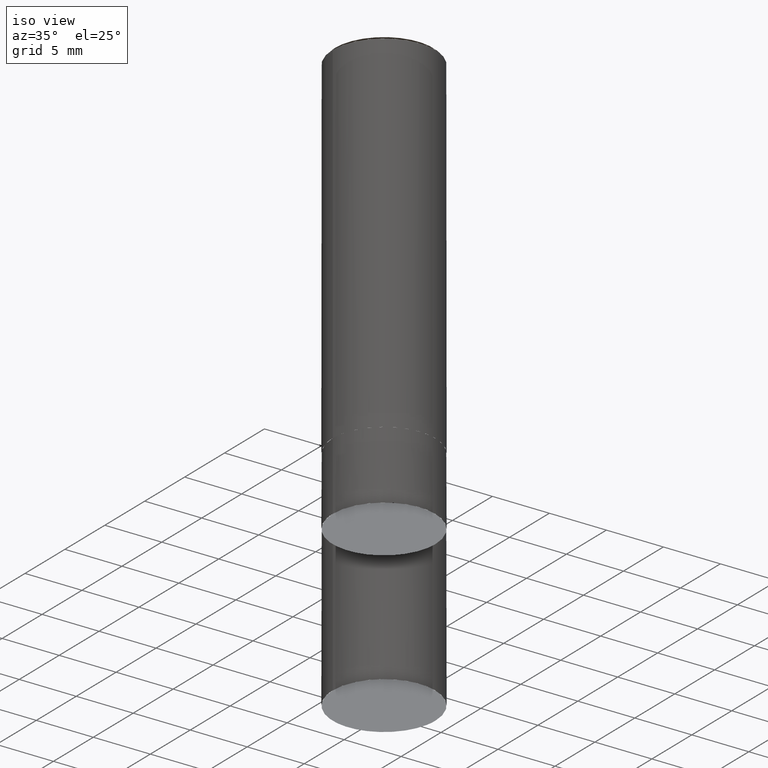
[diagram: clean part render]
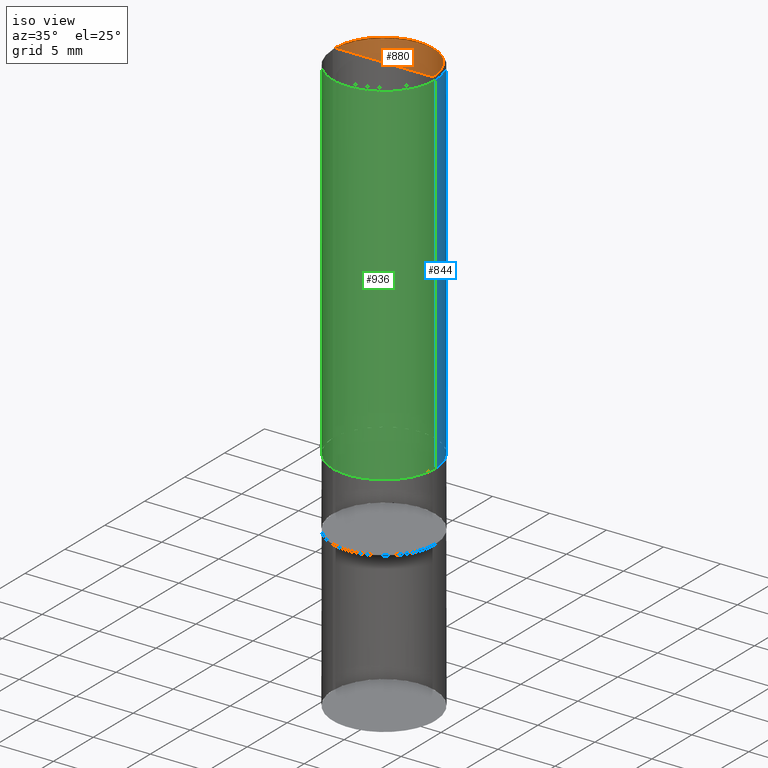
[diagram: same view with three faces highlighted in distinct colors, each labeled with its STEP entity id]
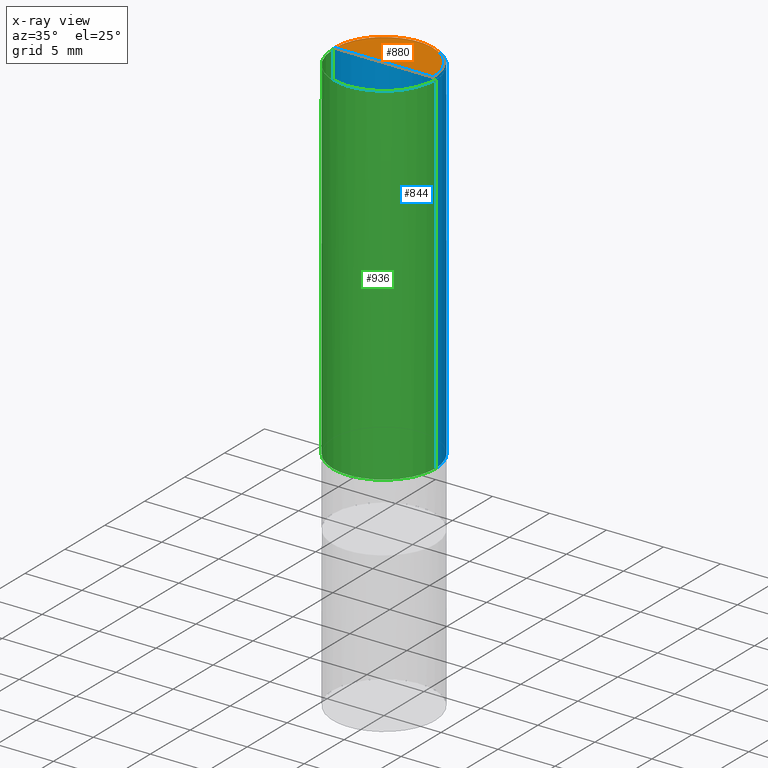
[diagram: x-ray of the same camera — body ghosted, the three highlighted faces saturated]
A machine part, iso view with three faces highlighted in distinct colors.
The next image is the same camera in x-ray (body ghosted, the three faces saturated) — at least one of them is partly hidden behind the body in this view.
Their STEP definitions:

[orange] entity #880 — the highlighted face is a freeform B-spline surface patch.
#660=CARTESIAN_POINT('',(4.3,0.0,31.0));
#661=CARTESIAN_POINT('',(4.3,4.3,31.0));
#662=CARTESIAN_POINT('',(0.0,4.3,31.0));
#663=CARTESIAN_POINT('',(-4.3,4.3,31.0));
#664=CARTESIAN_POINT('',(-4.3,0.0,31.0));
#665=CARTESIAN_POINT('',(0.0,0.0,31.0));
#865=(
BOUNDED_SURFACE()
B_SPLINE_SURFACE(1,2,(
(#660,#661,#662,#663,#664),
(#665,#665,#665,#665,#665)
), .UNSPECIFIED.,.F.,.F.,.F.)
B_SPLINE_SURFACE_WITH_KNOTS((2,2),(3,2,3),(
0.0,1.0),(
0.0,0.5,1.0), .UNSPECIFIED.)
GEOMETRIC_REPRESENTATION_ITEM()
RATIONAL_B_SPLINE_SURFACE(((1.0,0.707106781187,1.0,0.707106781187,1.0),
(1.0,0.707106781187,1.0,0.707106781187,1.0)
))
REPRESENTATION_ITEM('')
SURFACE()
);
#866=(
BOUNDED_CURVE()
B_SPLINE_CURVE(2,(#664,#663,#662,#661,#660),.UNSPECIFIED.,.F.,.F.)
B_SPLINE_CURVE_WITH_KNOTS((3,2,3),
(0.0,0.5,1.0),.UNSPECIFIED.)
CURVE()
GEOMETRIC_REPRESENTATION_ITEM()
RATIONAL_B_SPLINE_CURVE((1.0,0.707106781187,1.0,0.707106781187,1.0))
REPRESENTATION_ITEM('')
);
#867=(
BOUNDED_CURVE()
B_SPLINE_CURVE(1,(#660,#665),.UNSPECIFIED.,.F.,.F.)
B_SPLINE_CURVE_WITH_KNOTS((2,2),
(0.0,1.0),.UNSPECIFIED.)
CURVE()
GEOMETRIC_REPRESENTATION_ITEM()
RATIONAL_B_SPLINE_CURVE((1.0,1.0))
REPRESENTATION_ITEM('')
);
#868=(
BOUNDED_CURVE()
B_SPLINE_CURVE(1,(#665,#664),.UNSPECIFIED.,.F.,.F.)
B_SPLINE_CURVE_WITH_KNOTS((2,2),
(0.0,1.0),.UNSPECIFIED.)
CURVE()
GEOMETRIC_REPRESENTATION_ITEM()
RATIONAL_B_SPLINE_CURVE((1.0,1.0))
REPRESENTATION_ITEM('')
);
#869=VERTEX_POINT('',#660);
#870=VERTEX_POINT('',#664);
#871=VERTEX_POINT('',#665);
#872=EDGE_CURVE('',#870,#869,#866,.T.);
#873=EDGE_CURVE('',#869,#871,#867,.T.);
#874=EDGE_CURVE('',#871,#870,#868,.T.);
#875=ORIENTED_EDGE('',*,*,#872,.T.);
#876=ORIENTED_EDGE('',*,*,#873,.T.);
#877=ORIENTED_EDGE('',*,*,#874,.T.);
#878=EDGE_LOOP('',(#875,#876,#877));
#879=FACE_OUTER_BOUND('',#878,.T.);
#880=ADVANCED_FACE('',(#879),#865,.T.);

[blue] entity #844 — the highlighted face is a freeform B-spline surface patch.
#650=CARTESIAN_POINT('',(4.5,0.0,0.0));
#651=CARTESIAN_POINT('',(4.5,4.5,0.0));
#652=CARTESIAN_POINT('',(0.0,4.5,0.0));
#653=CARTESIAN_POINT('',(-4.5,4.5,0.0));
#654=CARTESIAN_POINT('',(-4.5,0.0,0.0));
#655=CARTESIAN_POINT('',(4.5,0.0,30.8));
#656=CARTESIAN_POINT('',(4.5,4.5,30.8));
#657=CARTESIAN_POINT('',(0.0,4.5,30.8));
#658=CARTESIAN_POINT('',(-4.5,4.5,30.8));
#659=CARTESIAN_POINT('',(-4.5,0.0,30.8));
#825=(
BOUNDED_SURFACE()
B_SPLINE_SURFACE(1,2,(
(#650,#651,#652,#653,#654),
(#655,#656,#657,#658,#659)
), .UNSPECIFIED.,.F.,.F.,.F.)
B_SPLINE_SURFACE_WITH_KNOTS((2,2),(3,2,3),(
0.0,1.0),(
0.0,0.5,1.0), .UNSPECIFIED.)
GEOMETRIC_REPRESENTATION_ITEM()
RATIONAL_B_SPLINE_SURFACE(((1.0,0.707106781187,1.0,0.707106781187,1.0),
(1.0,0.707106781187,1.0,0.707106781187,1.0)
))
REPRESENTATION_ITEM('')
SURFACE()
);
#826=(
BOUNDED_CURVE()
B_SPLINE_CURVE(2,(#654,#653,#652,#651,#650),.UNSPECIFIED.,.F.,.F.)
B_SPLINE_CURVE_WITH_KNOTS((3,2,3),
(0.0,0.5,1.0),.UNSPECIFIED.)
CURVE()
GEOMETRIC_REPRESENTATION_ITEM()
RATIONAL_B_SPLINE_CURVE((1.0,0.707106781187,1.0,0.707106781187,1.0))
REPRESENTATION_ITEM('')
);
#827=(
BOUNDED_CURVE()
B_SPLINE_CURVE(1,(#650,#655),.UNSPECIFIED.,.F.,.F.)
B_SPLINE_CURVE_WITH_KNOTS((2,2),
(0.0,1.0),.UNSPECIFIED.)
CURVE()
GEOMETRIC_REPRESENTATION_ITEM()
RATIONAL_B_SPLINE_CURVE((1.0,1.0))
REPRESENTATION_ITEM('')
);
#828=(
BOUNDED_CURVE()
B_SPLINE_CURVE(2,(#655,#656,#657,#658,#659),.UNSPECIFIED.,.F.,.F.)
B_SPLINE_CURVE_WITH_KNOTS((3,2,3),
(0.0,0.5,1.0),.UNSPECIFIED.)
CURVE()
GEOMETRIC_REPRESENTATION_ITEM()
RATIONAL_B_SPLINE_CURVE((1.0,0.707106781187,1.0,0.707106781187,1.0))
REPRESENTATION_ITEM('')
);
#829=(
BOUNDED_CURVE()
B_SPLINE_CURVE(1,(#659,#654),.UNSPECIFIED.,.F.,.F.)
B_SPLINE_CURVE_WITH_KNOTS((2,2),
(0.0,1.0),.UNSPECIFIED.)
CURVE()
GEOMETRIC_REPRESENTATION_ITEM()
RATIONAL_B_SPLINE_CURVE((1.0,1.0))
REPRESENTATION_ITEM('')
);
#830=VERTEX_POINT('',#650);
#831=VERTEX_POINT('',#654);
#832=VERTEX_POINT('',#655);
#833=VERTEX_POINT('',#659);
#834=EDGE_CURVE('',#831,#830,#826,.T.);
#835=EDGE_CURVE('',#830,#832,#827,.T.);
#836=EDGE_CURVE('',#832,#833,#828,.T.);
#837=EDGE_CURVE('',#833,#831,#829,.T.);
#838=ORIENTED_EDGE('',*,*,#834,.T.);
#839=ORIENTED_EDGE('',*,*,#835,.T.);
#840=ORIENTED_EDGE('',*,*,#836,.T.);
#841=ORIENTED_EDGE('',*,*,#837,.T.);
#842=EDGE_LOOP('',(#838,#839,#840,#841));
#843=FACE_OUTER_BOUND('',#842,.T.);
#844=ADVANCED_FACE('',(#843),#825,.T.);

[green] entity #936 — the highlighted face is a freeform B-spline surface patch.
#650=CARTESIAN_POINT('',(4.5,0.0,0.0));
#654=CARTESIAN_POINT('',(-4.5,0.0,0.0));
#655=CARTESIAN_POINT('',(4.5,0.0,30.8));
#659=CARTESIAN_POINT('',(-4.5,0.0,30.8));
#666=CARTESIAN_POINT('',(-4.5,-4.5,0.0));
#667=CARTESIAN_POINT('',(0.0,-4.5,0.0));
#668=CARTESIAN_POINT('',(4.5,-4.5,0.0));
#669=CARTESIAN_POINT('',(-4.5,-4.5,30.8));
#670=CARTESIAN_POINT('',(0.0,-4.5,30.8));
#671=CARTESIAN_POINT('',(4.5,-4.5,30.8));
#917=(
BOUNDED_SURFACE()
B_SPLINE_SURFACE(1,2,(
(#654,#666,#667,#668,#650),
(#659,#669,#670,#671,#655)
), .UNSPECIFIED.,.F.,.F.,.F.)
B_SPLINE_SURFACE_WITH_KNOTS((2,2),(3,2,3),(
0.0,1.0),(
0.0,0.5,1.0), .UNSPECIFIED.)
GEOMETRIC_REPRESENTATION_ITEM()
RATIONAL_B_SPLINE_SURFACE(((1.0,0.707106781187,1.0,0.707106781187,1.0),
(1.0,0.707106781187,1.0,0.707106781187,1.0)
))
REPRESENTATION_ITEM('')
SURFACE()
);
#918=(
BOUNDED_CURVE()
B_SPLINE_CURVE(2,(#650,#668,#667,#666,#654),.UNSPECIFIED.,.F.,.F.)
B_SPLINE_CURVE_WITH_KNOTS((3,2,3),
(0.0,0.5,1.0),.UNSPECIFIED.)
CURVE()
GEOMETRIC_REPRESENTATION_ITEM()
RATIONAL_B_SPLINE_CURVE((1.0,0.707106781187,1.0,0.707106781187,1.0))
REPRESENTATION_ITEM('')
);
#919=(
BOUNDED_CURVE()
B_SPLINE_CURVE(1,(#654,#659),.UNSPECIFIED.,.F.,.F.)
B_SPLINE_CURVE_WITH_KNOTS((2,2),
(0.0,1.0),.UNSPECIFIED.)
CURVE()
GEOMETRIC_REPRESENTATION_ITEM()
RATIONAL_B_SPLINE_CURVE((1.0,1.0))
REPRESENTATION_ITEM('')
);
#920=(
BOUNDED_CURVE()
B_SPLINE_CURVE(2,(#659,#669,#670,#671,#655),.UNSPECIFIED.,.F.,.F.)
B_SPLINE_CURVE_WITH_KNOTS((3,2,3),
(0.0,0.5,1.0),.UNSPECIFIED.)
CURVE()
GEOMETRIC_REPRESENTATION_ITEM()
RATIONAL_B_SPLINE_CURVE((1.0,0.707106781187,1.0,0.707106781187,1.0))
REPRESENTATION_ITEM('')
);
#921=(
BOUNDED_CURVE()
B_SPLINE_CURVE(1,(#655,#650),.UNSPECIFIED.,.F.,.F.)
B_SPLINE_CURVE_WITH_KNOTS((2,2),
(0.0,1.0),.UNSPECIFIED.)
CURVE()
GEOMETRIC_REPRESENTATION_ITEM()
RATIONAL_B_SPLINE_CURVE((1.0,1.0))
REPRESENTATION_ITEM('')
);
#922=VERTEX_POINT('',#650);
#923=VERTEX_POINT('',#654);
#924=VERTEX_POINT('',#655);
#925=VERTEX_POINT('',#659);
#926=EDGE_CURVE('',#922,#923,#918,.T.);
#927=EDGE_CURVE('',#923,#925,#919,.T.);
#928=EDGE_CURVE('',#925,#924,#920,.T.);
#929=EDGE_CURVE('',#924,#922,#921,.T.);
#930=ORIENTED_EDGE('',*,*,#926,.T.);
#931=ORIENTED_EDGE('',*,*,#927,.T.);
#932=ORIENTED_EDGE('',*,*,#928,.T.);
#933=ORIENTED_EDGE('',*,*,#929,.T.);
#934=EDGE_LOOP('',(#930,#931,#932,#933));
#935=FACE_OUTER_BOUND('',#934,.T.);
#936=ADVANCED_FACE('',(#935),#917,.T.);